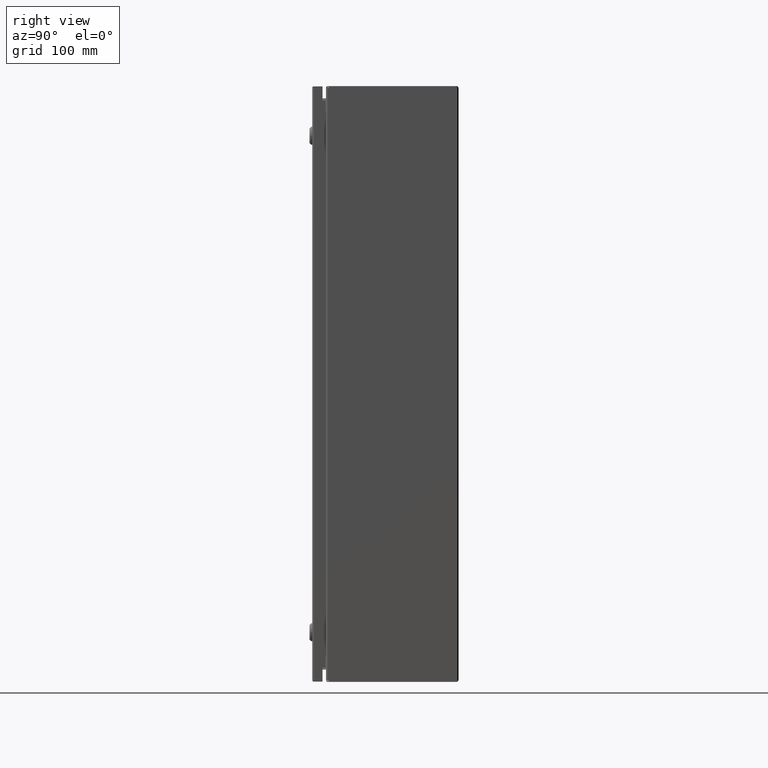
[diagram: clean part render]
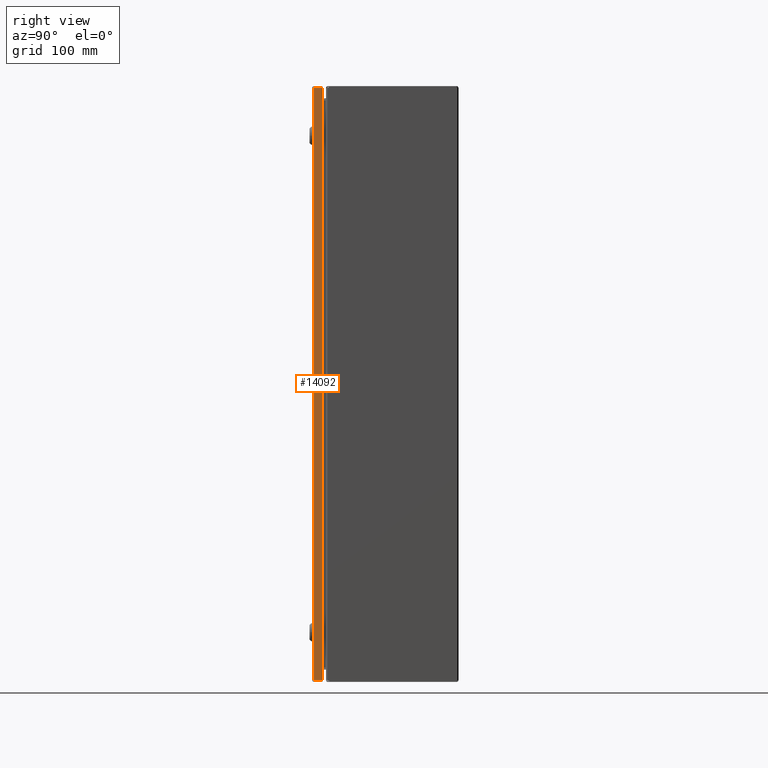
[diagram: same view with one face highlighted and labeled with its STEP entity id]
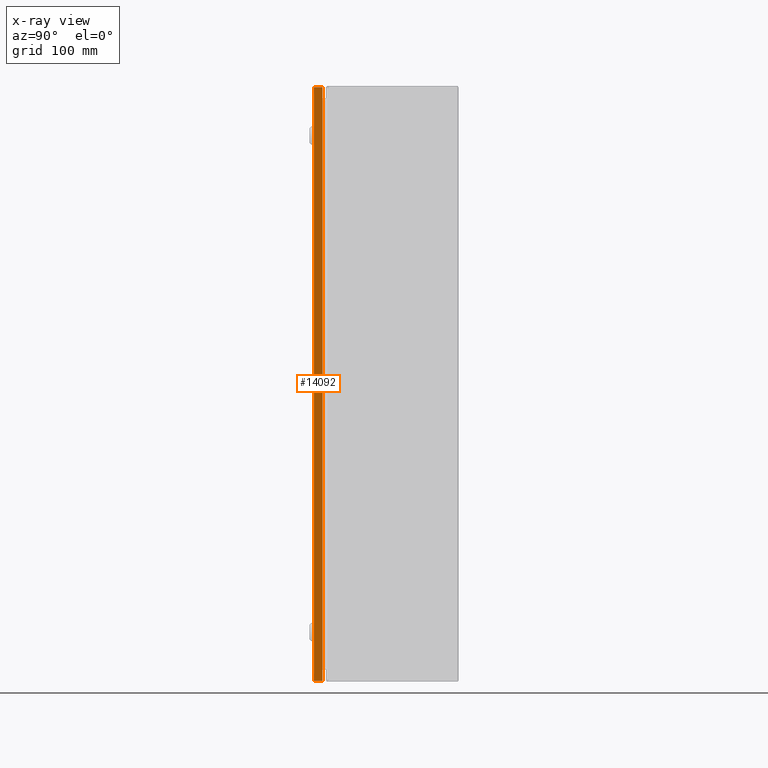
[diagram: x-ray of the same camera — body ghosted, the highlighted face saturated]
A machine part, right view. The second image highlights one B-rep face of the part: STEP entity #14092.
The next image is the same camera in x-ray: the body ghosted, the highlighted face saturated — about 0% of this face is hidden behind the body in this view.
In plain terms, the highlighted planar face has unit normal (1, 0, 0).
Its self-contained STEP definition (entity closure, byte-faithful):
#950 = VERTEX_POINT ( 'NONE', #10673 ) ;
#1075 = EDGE_LOOP ( 'NONE', ( #21144, #13539, #26262, #19135 ) ) ;
#1526 = DIRECTION ( 'NONE',  ( 1.000000000000000000, 6.123031769111889989E-17, 0.0000000000000000000 ) ) ;
#4341 = EDGE_CURVE ( 'NONE', #16039, #30535, #17217, .T. ) ;
#4501 = VERTEX_POINT ( 'NONE', #18140 ) ;
#5017 = CARTESIAN_POINT ( 'NONE',  ( 11.97299999999998654, -8.774500000000001521, -17.91292125984253047 ) ) ;
#6766 = CARTESIAN_POINT ( 'NONE',  ( 11.97299999999998654, -8.774500000000001521, 17.87599999999999767 ) ) ;
#7509 = CARTESIAN_POINT ( 'NONE',  ( 11.97299999999998654, -8.212000000000001521, 17.87599999999999767 ) ) ;
#10673 = CARTESIAN_POINT ( 'NONE',  ( 11.97299999999998654, -8.212000000000001521, 17.91192125984251504 ) ) ;
#11076 = DIRECTION ( 'NONE',  ( -1.224606353822379970E-16, 6.123031769111889989E-17, 1.000000000000000000 ) ) ;
#11259 = FACE_OUTER_BOUND ( 'NONE', #1075, .T. ) ;
#11736 = CARTESIAN_POINT ( 'NONE',  ( 11.97299999999998654, -8.774500000000001521, 17.91192125984251504 ) ) ;
#13280 = VECTOR ( 'NONE', #11076, 39.37007874015748143 ) ;
#13285 = EDGE_CURVE ( 'NONE', #16039, #4501, #15699, .T. ) ;
#13539 = ORIENTED_EDGE ( 'NONE', *, *, #4341, .T. ) ;
#14092 = ADVANCED_FACE ( 'NONE', ( #11259 ), #30308, .T. ) ;
#15699 = LINE ( 'NONE', #27171, #13280 ) ;
#16039 = VERTEX_POINT ( 'NONE', #18874 ) ;
#16410 = LINE ( 'NONE', #11736, #17866 ) ;
#17217 = LINE ( 'NONE', #5017, #22987 ) ;
#17866 = VECTOR ( 'NONE', #21182, 39.37007874015748143 ) ;
#18140 = CARTESIAN_POINT ( 'NONE',  ( 11.97299999999998654, -8.729000000000008086, 17.91192125984251504 ) ) ;
#18818 = EDGE_CURVE ( 'NONE', #30535, #950, #26070, .T. ) ;
#18874 = CARTESIAN_POINT ( 'NONE',  ( 11.97299999999999010, -8.729000000000009862, -17.91292125984253047 ) ) ;
#19084 = DIRECTION ( 'NONE',  ( -6.123031769111889989E-17, 1.000000000000000000, 0.0000000000000000000 ) ) ;
#19135 = ORIENTED_EDGE ( 'NONE', *, *, #22550, .T. ) ;
#20742 = AXIS2_PLACEMENT_3D ( 'NONE', #6766, #1526, #26102 ) ;
#21144 = ORIENTED_EDGE ( 'NONE', *, *, #13285, .F. ) ;
#21182 = DIRECTION ( 'NONE',  ( -0.0000000000000000000, -1.000000000000000000, -0.0000000000000000000 ) ) ;
#22191 = VECTOR ( 'NONE', #23739, 39.37007874015748143 ) ;
#22550 = EDGE_CURVE ( 'NONE', #950, #4501, #16410, .T. ) ;
#22987 = VECTOR ( 'NONE', #19084, 39.37007874015748143 ) ;
#23739 = DIRECTION ( 'NONE',  ( 0.0000000000000000000, -0.0000000000000000000, 1.000000000000000000 ) ) ;
#26070 = LINE ( 'NONE', #7509, #22191 ) ;
#26102 = DIRECTION ( 'NONE',  ( -6.123031769111889989E-17, 1.000000000000000000, 0.0000000000000000000 ) ) ;
#26262 = ORIENTED_EDGE ( 'NONE', *, *, #18818, .T. ) ;
#27171 = CARTESIAN_POINT ( 'NONE',  ( 11.97299999999998654, -8.729000000000013415, 17.87599999999999767 ) ) ;
#27316 = CARTESIAN_POINT ( 'NONE',  ( 11.97299999999998654, -8.212000000000001521, -17.91292125984252692 ) ) ;
#30308 = PLANE ( 'NONE',  #20742 ) ;
#30535 = VERTEX_POINT ( 'NONE', #27316 ) ;